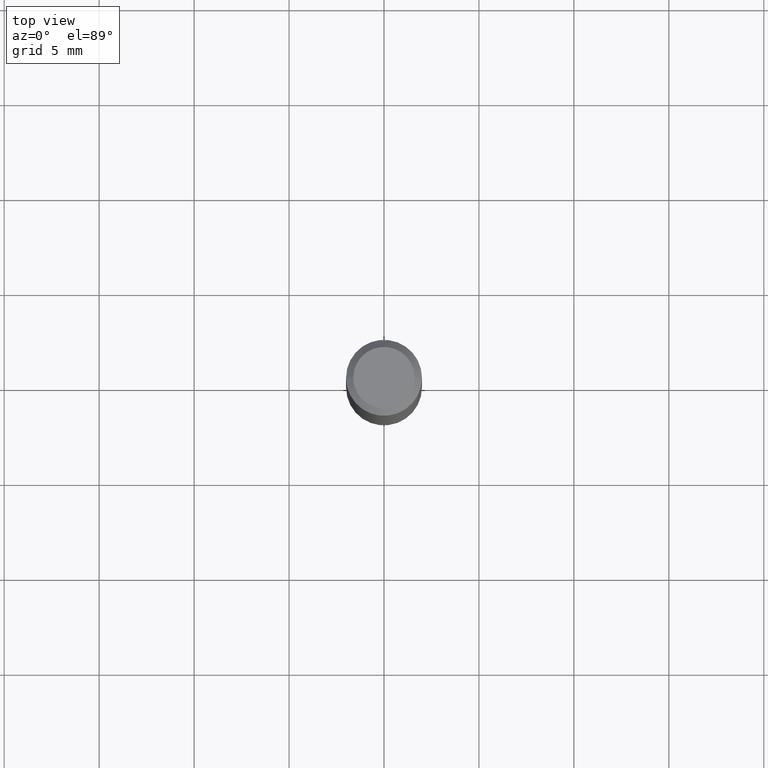
[diagram: clean part render]
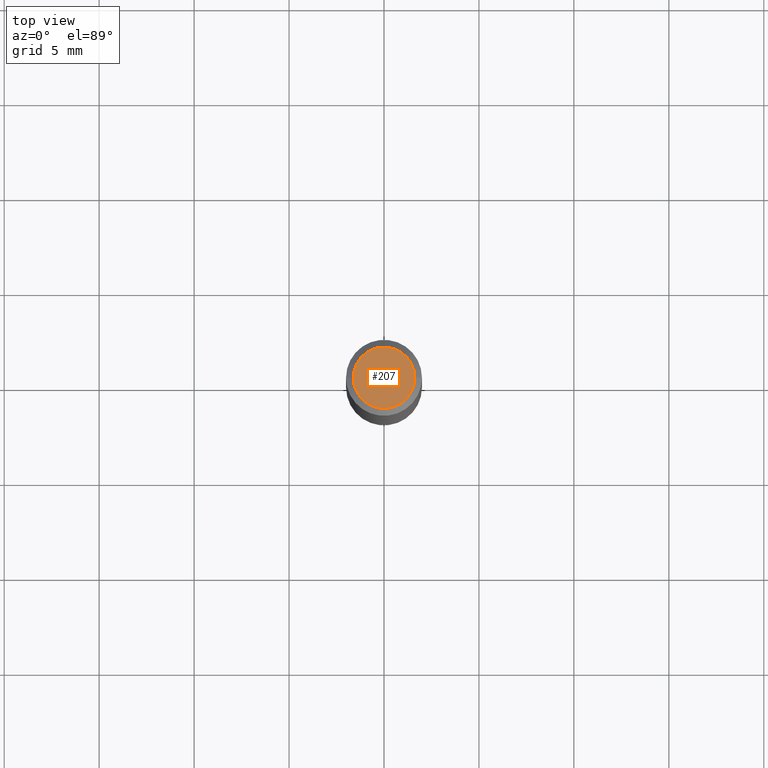
[diagram: same view with one face highlighted and labeled with its STEP entity id]
A machine part, top view. The second image highlights one B-rep face of the part: STEP entity #207.
In plain terms, the highlighted planar face has unit normal (0, -0, -1).
Its self-contained STEP definition (entity closure, byte-faithful):
#3 = AXIS2_PLACEMENT_3D ( 'NONE', #102, #423, #57 ) ;
#38 = ORIENTED_EDGE ( 'NONE', *, *, #77, .T. ) ;
#40 = EDGE_LOOP ( 'NONE', ( #111, #38 ) ) ;
#50 = DIRECTION ( 'NONE',  ( -2.445468806185136597E-29, 3.491481338843145583E-15, 1.000000000000000000 ) ) ;
#52 = DIRECTION ( 'NONE',  ( 1.000000000000000000, -6.982962677686265922E-15, 4.947888571036530338E-29 ) ) ;
#57 = DIRECTION ( 'NONE',  ( -1.000000000000000000, 6.982962677686265922E-15, -4.876176775795935793E-29 ) ) ;
#58 = CARTESIAN_POINT ( 'NONE',  ( -1.361870578287719451E-44, 1.944390252692970891E-30, 5.568955019353527485E-16 ) ) ;
#77 = EDGE_CURVE ( 'NONE', #168, #346, #227, .T. ) ;
#98 = DIRECTION ( 'NONE',  ( -2.445468806185136597E-29, 3.491481338843145583E-15, 1.000000000000000000 ) ) ;
#102 = CARTESIAN_POINT ( 'NONE',  ( 4.451638707024993845E-16, 0.06375000000000000111, 5.586581561642585620E-17 ) ) ;
#111 = ORIENTED_EDGE ( 'NONE', *, *, #149, .T. ) ;
#149 = EDGE_CURVE ( 'NONE', #346, #168, #351, .T. ) ;
#152 = CARTESIAN_POINT ( 'NONE',  ( -0.06375000000000000111, 4.713499807438238115E-16, 5.568955019353495931E-16 ) ) ;
#168 = VERTEX_POINT ( 'NONE', #456 ) ;
#173 = PLANE ( 'NONE',  #3 ) ;
#207 = ADVANCED_FACE ( 'NONE', ( #280 ), #173, .F. ) ;
#227 = CIRCLE ( 'NONE', #384, 0.06375000000000000111 ) ;
#242 = CARTESIAN_POINT ( 'NONE',  ( -1.361870578287719451E-44, 1.944390252692970891E-30, 5.568955019353527485E-16 ) ) ;
#246 = DIRECTION ( 'NONE',  ( 1.000000000000000000, -6.982962677686265922E-15, 4.947888571036530338E-29 ) ) ;
#280 = FACE_OUTER_BOUND ( 'NONE', #40, .T. ) ;
#286 = AXIS2_PLACEMENT_3D ( 'NONE', #58, #98, #246 ) ;
#346 = VERTEX_POINT ( 'NONE', #152 ) ;
#351 = CIRCLE ( 'NONE', #286, 0.06375000000000000111 ) ;
#384 = AXIS2_PLACEMENT_3D ( 'NONE', #242, #50, #52 ) ;
#423 = DIRECTION ( 'NONE',  ( 2.438088387897960049E-29, -3.491481338843145188E-15, -1.000000000000000000 ) ) ;
#456 = CARTESIAN_POINT ( 'NONE',  ( 0.06375000000000000111, -5.149965923825441419E-16, 5.568955019353561012E-16 ) ) ;